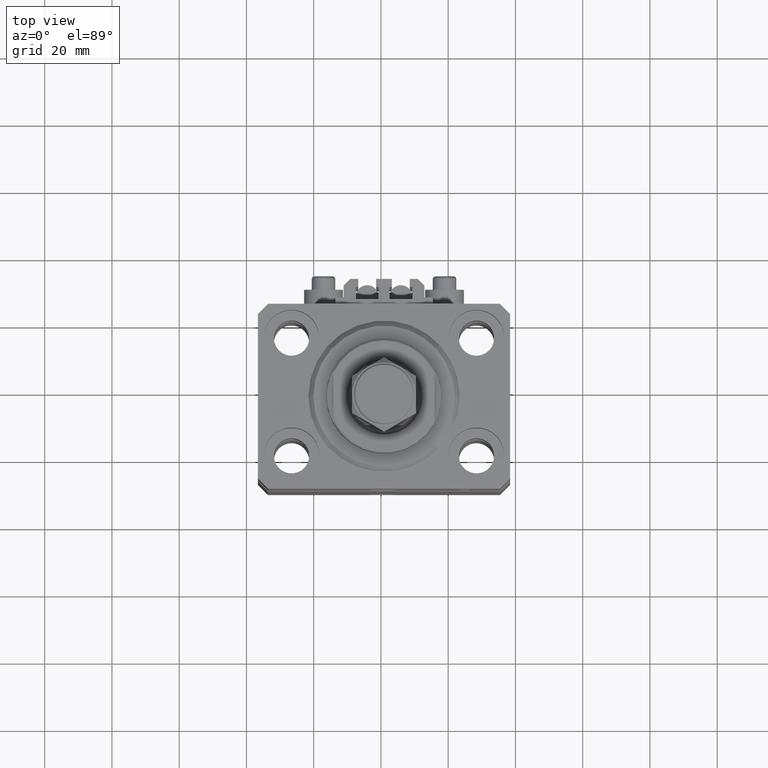
[diagram: clean part render]
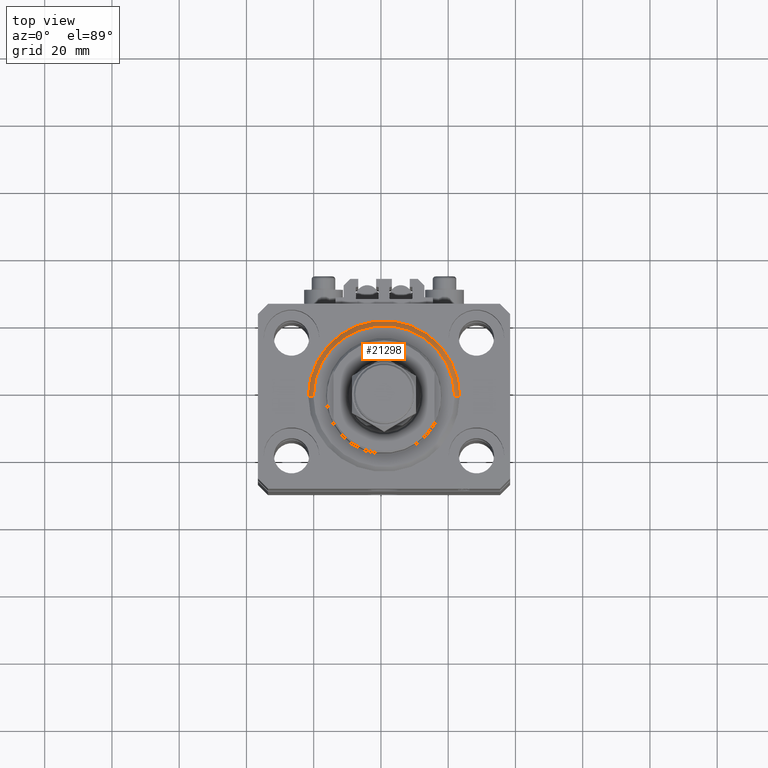
[diagram: same view with one face highlighted and labeled with its STEP entity id]
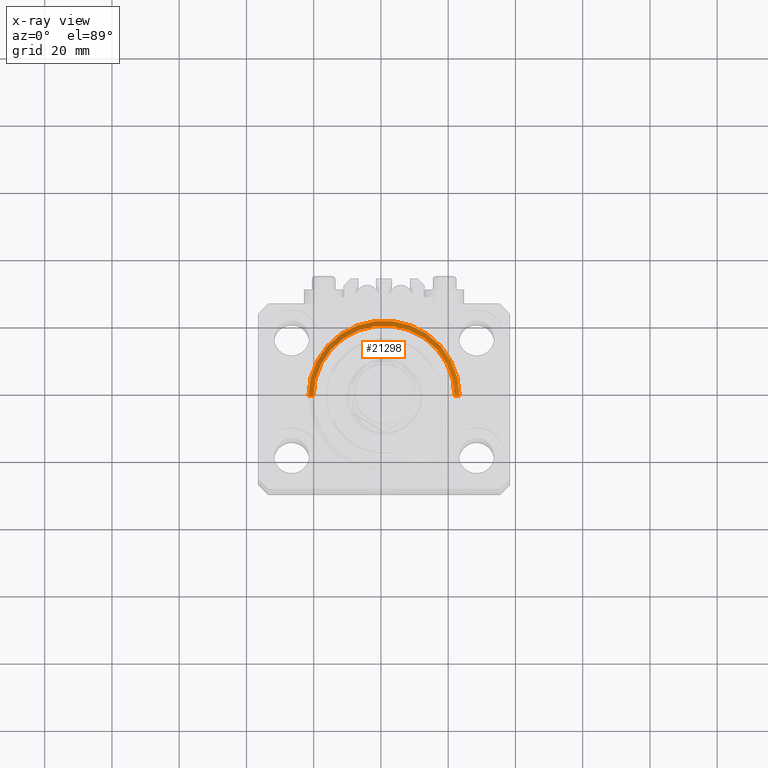
[diagram: x-ray of the same camera — body ghosted, the highlighted face saturated]
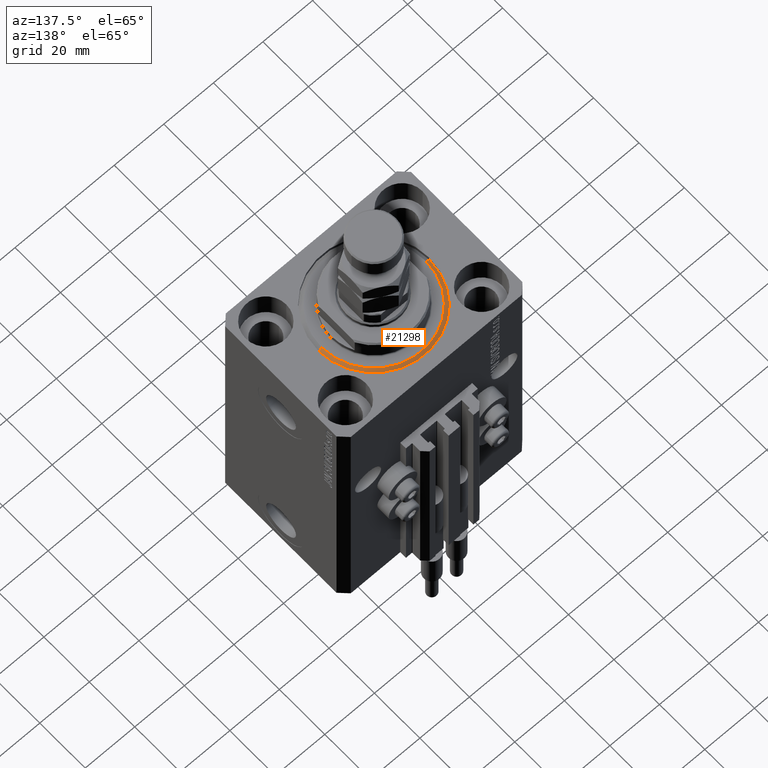
[diagram: same view with one face highlighted and labeled with its STEP entity id]
A machine part, top view. The second image highlights one B-rep face of the part: STEP entity #21298.
The next image is the same camera in x-ray: the body ghosted, the highlighted face saturated — about 0% of this face is hidden behind the body in this view.
A second angle (auxiliary view) of the same face is appended — the face is thin or edge-on in the first view.
In plain terms, the highlighted conical surface has half-angle 45 deg.
Its self-contained STEP definition (entity closure, byte-faithful):
#952 = VECTOR ( 'NONE', #25431, 1000.000000000000114 ) ;
#1973 = AXIS2_PLACEMENT_3D ( 'NONE', #7351, #27314, #19565 ) ;
#3775 = LINE ( 'NONE', #11508, #952 ) ;
#7324 = ORIENTED_EDGE ( 'NONE', *, *, #33875, .F. ) ;
#7351 = CARTESIAN_POINT ( 'NONE',  ( 0.000000000000000000, 0.000000000000000000, 1.500000000000039524 ) ) ;
#9041 = DIRECTION ( 'NONE',  ( 1.000000000000000000, 0.000000000000000000, 0.000000000000000000 ) ) ;
#11508 = CARTESIAN_POINT ( 'NONE',  ( 22.50000000000000355, 0.000000000000000000, 1.500000000000039524 ) ) ;
#15508 = AXIS2_PLACEMENT_3D ( 'NONE', #37286, #40531, #29340 ) ;
#19565 = DIRECTION ( 'NONE',  ( 1.000000000000000000, 0.000000000000000000, 0.000000000000000000 ) ) ;
#21055 = ORIENTED_EDGE ( 'NONE', *, *, #24596, .F. ) ;
#21298 = ADVANCED_FACE ( 'NONE', ( #32739 ), #31398, .T. ) ;
#21910 = CARTESIAN_POINT ( 'NONE',  ( -22.50000000000000355, 2.755455298081545172E-15, 1.500000000000039524 ) ) ;
#23979 = ORIENTED_EDGE ( 'NONE', *, *, #32010, .F. ) ;
#24361 = VERTEX_POINT ( 'NONE', #28527 ) ;
#24596 = EDGE_CURVE ( 'NONE', #46155, #31330, #3775, .T. ) ;
#25431 = DIRECTION ( 'NONE',  ( 0.7071067811865500152, 0.000000000000000000, 0.7071067811865451302 ) ) ;
#27314 = DIRECTION ( 'NONE',  ( -0.000000000000000000, -0.000000000000000000, 1.000000000000000000 ) ) ;
#27736 = CARTESIAN_POINT ( 'NONE',  ( 22.50000000000000355, 2.755455298081544383E-15, 1.500000000000039524 ) ) ;
#28527 = CARTESIAN_POINT ( 'NONE',  ( -20.99999999999995381, 2.663606788145490261E-15, 0.000000000000000000 ) ) ;
#28883 = EDGE_CURVE ( 'NONE', #24361, #44844, #40845, .T. ) ;
#29244 = DIRECTION ( 'NONE',  ( -0.000000000000000000, -0.000000000000000000, 1.000000000000000000 ) ) ;
#29340 = DIRECTION ( 'NONE',  ( 1.000000000000000000, 0.000000000000000000, 0.000000000000000000 ) ) ;
#29485 = CARTESIAN_POINT ( 'NONE',  ( -22.50000000000000355, 0.000000000000000000, 1.500000000000039524 ) ) ;
#29650 = DIRECTION ( 'NONE',  ( -0.7071067811865500152, 8.659560562354962440E-17, 0.7071067811865451302 ) ) ;
#31330 = VERTEX_POINT ( 'NONE', #27736 ) ;
#31398 = CONICAL_SURFACE ( 'NONE', #46492, 22.50000000000000355, 0.7853981633974517207 ) ;
#32010 = EDGE_CURVE ( 'NONE', #24361, #46155, #41768, .T. ) ;
#32294 = CIRCLE ( 'NONE', #1973, 22.50000000000000355 ) ;
#32739 = FACE_OUTER_BOUND ( 'NONE', #47568, .T. ) ;
#33875 = EDGE_CURVE ( 'NONE', #31330, #44844, #32294, .T. ) ;
#36094 = VECTOR ( 'NONE', #29650, 1000.000000000000114 ) ;
#37286 = CARTESIAN_POINT ( 'NONE',  ( 0.000000000000000000, 0.000000000000000000, 0.000000000000000000 ) ) ;
#40531 = DIRECTION ( 'NONE',  ( -0.000000000000000000, -0.000000000000000000, -1.000000000000000000 ) ) ;
#40845 = LINE ( 'NONE', #21910, #36094 ) ;
#41768 = CIRCLE ( 'NONE', #15508, 20.99999999999995381 ) ;
#43437 = CARTESIAN_POINT ( 'NONE',  ( 0.000000000000000000, 0.000000000000000000, 1.500000000000039524 ) ) ;
#44844 = VERTEX_POINT ( 'NONE', #29485 ) ;
#46155 = VERTEX_POINT ( 'NONE', #48613 ) ;
#46492 = AXIS2_PLACEMENT_3D ( 'NONE', #43437, #29244, #9041 ) ;
#47568 = EDGE_LOOP ( 'NONE', ( #23979, #49357, #7324, #21055 ) ) ;
#48613 = CARTESIAN_POINT ( 'NONE',  ( 20.99999999999995381, 0.000000000000000000, 0.000000000000000000 ) ) ;
#49357 = ORIENTED_EDGE ( 'NONE', *, *, #28883, .T. ) ;